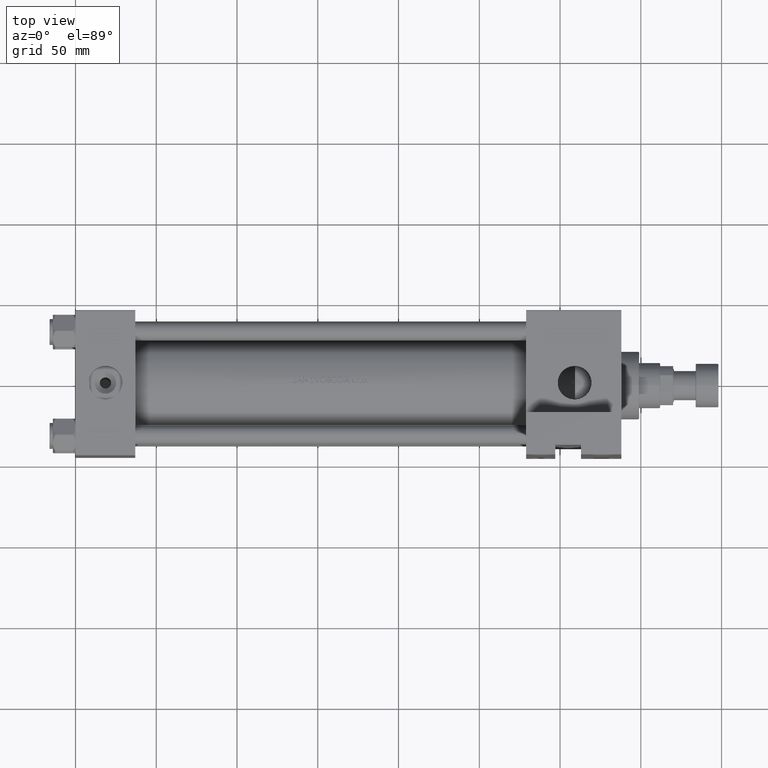
[diagram: clean part render]
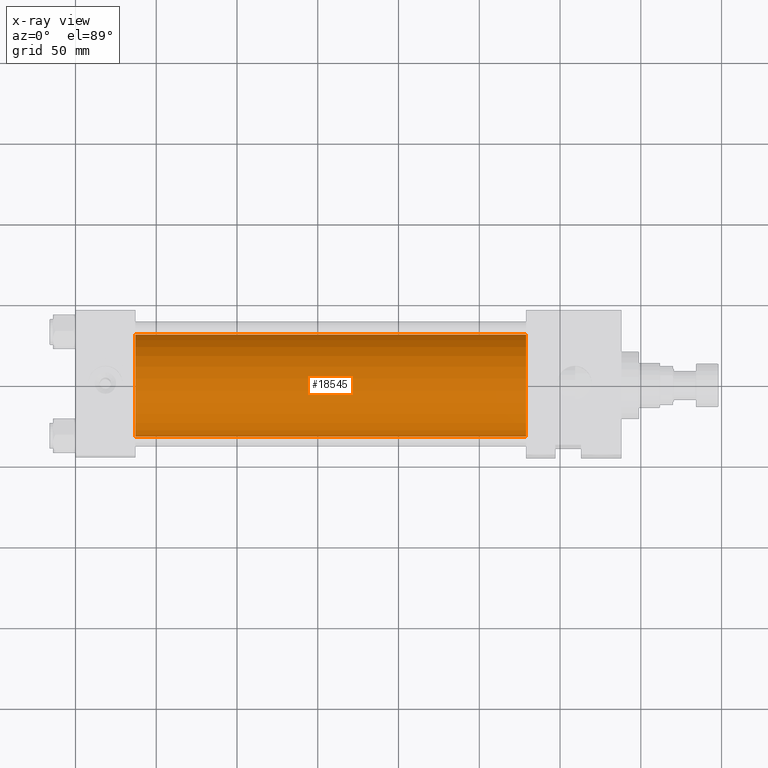
[diagram: x-ray — body ghosted, one internal face saturated and labeled with its STEP entity id]
A machine part, top view, then the same camera in x-ray: the body is ghosted and one INTERNAL B-rep face — a face not visible from any outside direction — is saturated and labeled: STEP entity #18545.
In plain terms, the highlighted cylindrical surface (partial cylindrical patch) has radius 31.5 mm, axis along (-1, -0, 0).
Its self-contained STEP definition (entity closure, byte-faithful):
#41 = VERTEX_POINT ( 'NONE', #20544 ) ;
#508 = AXIS2_PLACEMENT_3D ( 'NONE', #22694, #10247, #45780 ) ;
#2030 = CIRCLE ( 'NONE', #45005, 31.50000000000000000 ) ;
#2481 = EDGE_CURVE ( 'NONE', #26715, #12966, #6702, .T. ) ;
#3474 = ORIENTED_EDGE ( 'NONE', *, *, #13585, .T. ) ;
#6702 = LINE ( 'NONE', #41748, #38330 ) ;
#6953 = DIRECTION ( 'NONE',  ( -1.000000000000000000, -0.000000000000000000, -0.000000000000000000 ) ) ;
#7693 = EDGE_LOOP ( 'NONE', ( #35769, #3474, #13320, #48251 ) ) ;
#10247 = DIRECTION ( 'NONE',  ( 1.000000000000000000, 0.000000000000000000, 0.000000000000000000 ) ) ;
#12966 = VERTEX_POINT ( 'NONE', #15173 ) ;
#13320 = ORIENTED_EDGE ( 'NONE', *, *, #23411, .F. ) ;
#13486 = VERTEX_POINT ( 'NONE', #28791 ) ;
#13585 = EDGE_CURVE ( 'NONE', #41, #13486, #19137, .T. ) ;
#15173 = CARTESIAN_POINT ( 'NONE',  ( 37.00000000000000000, 0.000000000000000000, 30.49999999999999289 ) ) ;
#15960 = DIRECTION ( 'NONE',  ( 0.000000000000000000, 0.000000000000000000, -1.000000000000000000 ) ) ;
#18319 = VECTOR ( 'NONE', #34601, 1000.000000000000000 ) ;
#18545 = ADVANCED_FACE ( 'NONE', ( #44530 ), #37166, .F. ) ;
#19137 = LINE ( 'NONE', #37671, #18319 ) ;
#19180 = CIRCLE ( 'NONE', #508, 31.50000000000000000 ) ;
#20544 = CARTESIAN_POINT ( 'NONE',  ( 278.9999999999999432, 3.857637417314162689E-15, -32.50000000000000711 ) ) ;
#21887 = CARTESIAN_POINT ( 'NONE',  ( 278.9999999999999432, 0.000000000000000000, 30.49999999999999289 ) ) ;
#22694 = CARTESIAN_POINT ( 'NONE',  ( 278.9999999999999432, 0.000000000000000000, -1.000000000000007772 ) ) ;
#23411 = EDGE_CURVE ( 'NONE', #12966, #13486, #2030, .T. ) ;
#26444 = EDGE_CURVE ( 'NONE', #26715, #41, #19180, .T. ) ;
#26715 = VERTEX_POINT ( 'NONE', #21887 ) ;
#27630 = CARTESIAN_POINT ( 'NONE',  ( 37.00000000000000000, 0.000000000000000000, -1.000000000000007772 ) ) ;
#28086 = AXIS2_PLACEMENT_3D ( 'NONE', #40467, #36418, #36660 ) ;
#28791 = CARTESIAN_POINT ( 'NONE',  ( 37.00000000000000000, 3.857637417314162689E-15, -32.50000000000000711 ) ) ;
#34601 = DIRECTION ( 'NONE',  ( -1.000000000000000000, -0.000000000000000000, -0.000000000000000000 ) ) ;
#35769 = ORIENTED_EDGE ( 'NONE', *, *, #26444, .T. ) ;
#36418 = DIRECTION ( 'NONE',  ( -1.000000000000000000, -0.000000000000000000, -0.000000000000000000 ) ) ;
#36660 = DIRECTION ( 'NONE',  ( 0.000000000000000000, 0.000000000000000000, 1.000000000000000000 ) ) ;
#37166 = CYLINDRICAL_SURFACE ( 'NONE', #28086, 31.50000000000000000 ) ;
#37671 = CARTESIAN_POINT ( 'NONE',  ( 278.9999999999999432, 3.857637417314162689E-15, -32.50000000000000711 ) ) ;
#38330 = VECTOR ( 'NONE', #6953, 1000.000000000000000 ) ;
#40467 = CARTESIAN_POINT ( 'NONE',  ( 278.9999999999999432, 0.000000000000000000, -1.000000000000007772 ) ) ;
#41748 = CARTESIAN_POINT ( 'NONE',  ( 278.9999999999999432, 0.000000000000000000, 30.49999999999999289 ) ) ;
#42384 = DIRECTION ( 'NONE',  ( 1.000000000000000000, 0.000000000000000000, 0.000000000000000000 ) ) ;
#44530 = FACE_OUTER_BOUND ( 'NONE', #7693, .T. ) ;
#45005 = AXIS2_PLACEMENT_3D ( 'NONE', #27630, #42384, #15960 ) ;
#45780 = DIRECTION ( 'NONE',  ( 0.000000000000000000, 0.000000000000000000, -1.000000000000000000 ) ) ;
#48251 = ORIENTED_EDGE ( 'NONE', *, *, #2481, .F. ) ;